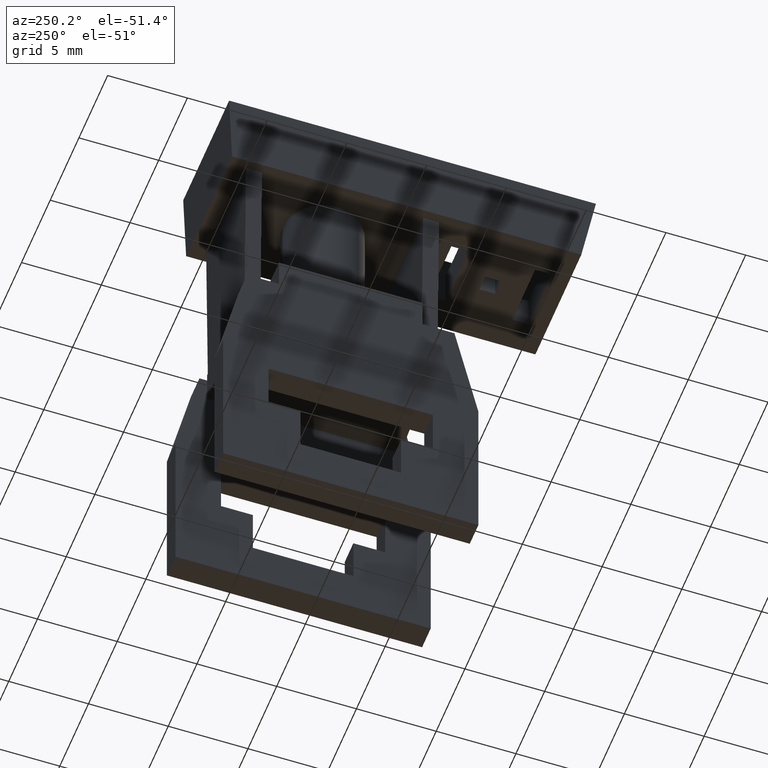
[diagram: clean part render]
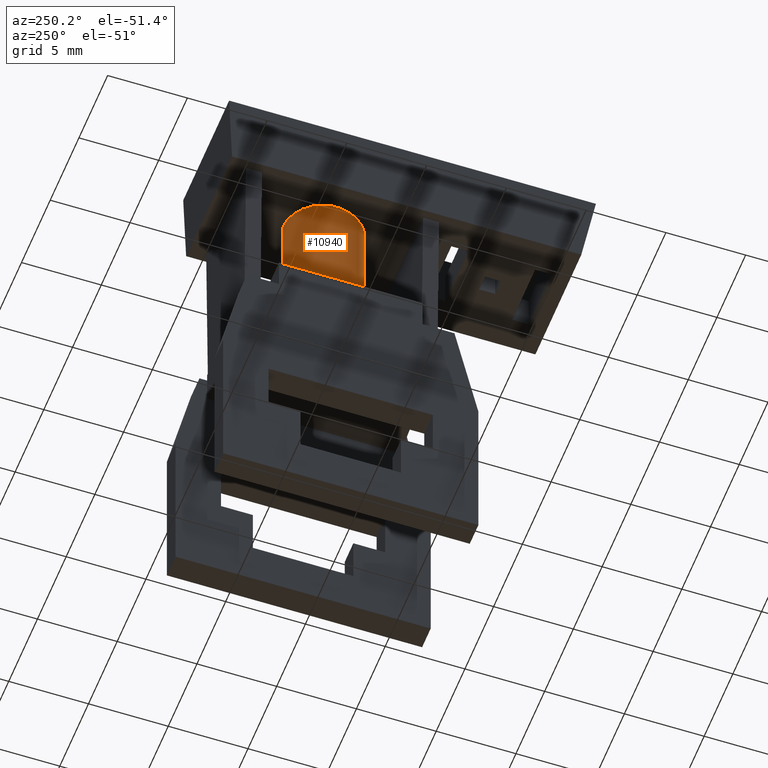
[diagram: same view with one face highlighted and labeled with its STEP entity id]
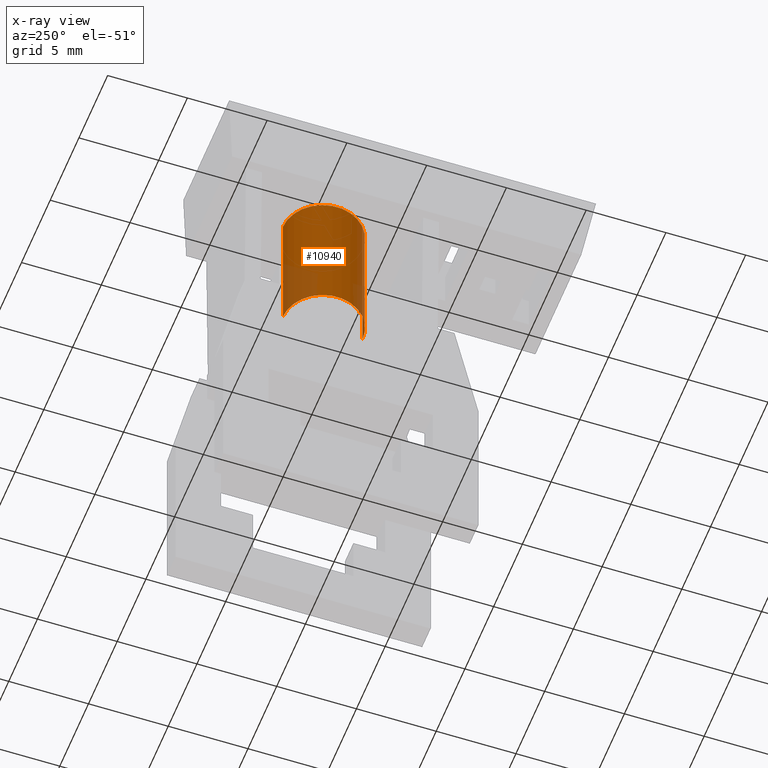
[diagram: x-ray of the same camera — body ghosted, the highlighted face saturated]
A machine part, auxiliary view. The second image highlights one B-rep face of the part: STEP entity #10940.
The next image is the same camera in x-ray: the body ghosted, the highlighted face saturated — about 20% of this face is hidden behind the body in this view.
In plain terms, the highlighted cylindrical surface (partial cylindrical patch) has radius 2.5 mm, axis along (-0, -0, -1).
Its self-contained STEP definition (entity closure, byte-faithful):
#10340=CARTESIAN_POINT('',(-4.90000000000001,29.5,8.));
#10350=DIRECTION('',(0.,-1.,0.));
#10360=DIRECTION('',(-6.12323399573677E-17,0.,-1.));
#10370=AXIS2_PLACEMENT_3D('',#10340,#10350,#10360);
#10380=CIRCLE('',#10370,2.5);
#10390=CARTESIAN_POINT('',(-4.90000000000001,29.5,5.5));
#10400=VERTEX_POINT('',#10390);
#10410=CARTESIAN_POINT('',(-4.9,29.5,10.5));
#10420=VERTEX_POINT('',#10410);
#10450=EDGE_CURVE('',#10420,#10400,#10380,.T.);
#10630=CARTESIAN_POINT('',(-4.90000000000001,17.15,8.));
#10640=DIRECTION('',(0.,-1.,0.));
#10650=DIRECTION('',(-6.12323399573677E-17,0.,-1.));
#10660=AXIS2_PLACEMENT_3D('',#10630,#10640,#10650);
#10670=CYLINDRICAL_SURFACE('',#10660,2.5);
#10680=CARTESIAN_POINT('',(-4.9,17.15,10.5));
#10690=DIRECTION('',(0.,-1.,0.));
#10700=VECTOR('',#10690,1.);
#10710=LINE('',#10680,#10700);
#10720=CARTESIAN_POINT('',(-4.9,21.,10.5));
#10730=VERTEX_POINT('',#10720);
#10740=EDGE_CURVE('',#10420,#10730,#10710,.T.);
#10750=ORIENTED_EDGE('',*,*,#10740,.F.);
#10760=CARTESIAN_POINT('',(-4.90000000000001,21.,8.));
#10770=DIRECTION('',(0.,-1.,0.));
#10780=DIRECTION('',(-6.12323399573677E-17,0.,-1.));
#10790=AXIS2_PLACEMENT_3D('',#10760,#10770,#10780);
#10800=CIRCLE('',#10790,2.5);
#10810=CARTESIAN_POINT('',(-4.90000000000001,21.,5.5));
#10820=VERTEX_POINT('',#10810);
#10830=EDGE_CURVE('',#10730,#10820,#10800,.T.);
#10840=ORIENTED_EDGE('',*,*,#10830,.F.);
#10850=CARTESIAN_POINT('',(-4.90000000000001,17.15,5.5));
#10860=DIRECTION('',(0.,-1.,0.));
#10870=VECTOR('',#10860,1.);
#10880=LINE('',#10850,#10870);
#10890=EDGE_CURVE('',#10400,#10820,#10880,.T.);
#10900=ORIENTED_EDGE('',*,*,#10890,.T.);
#10910=ORIENTED_EDGE('',*,*,#10450,.T.);
#10920=EDGE_LOOP('',(#10910,#10900,#10840,#10750));
#10930=FACE_OUTER_BOUND('',#10920,.T.);
#10940=ADVANCED_FACE('',(#10930),#10670,.T.);